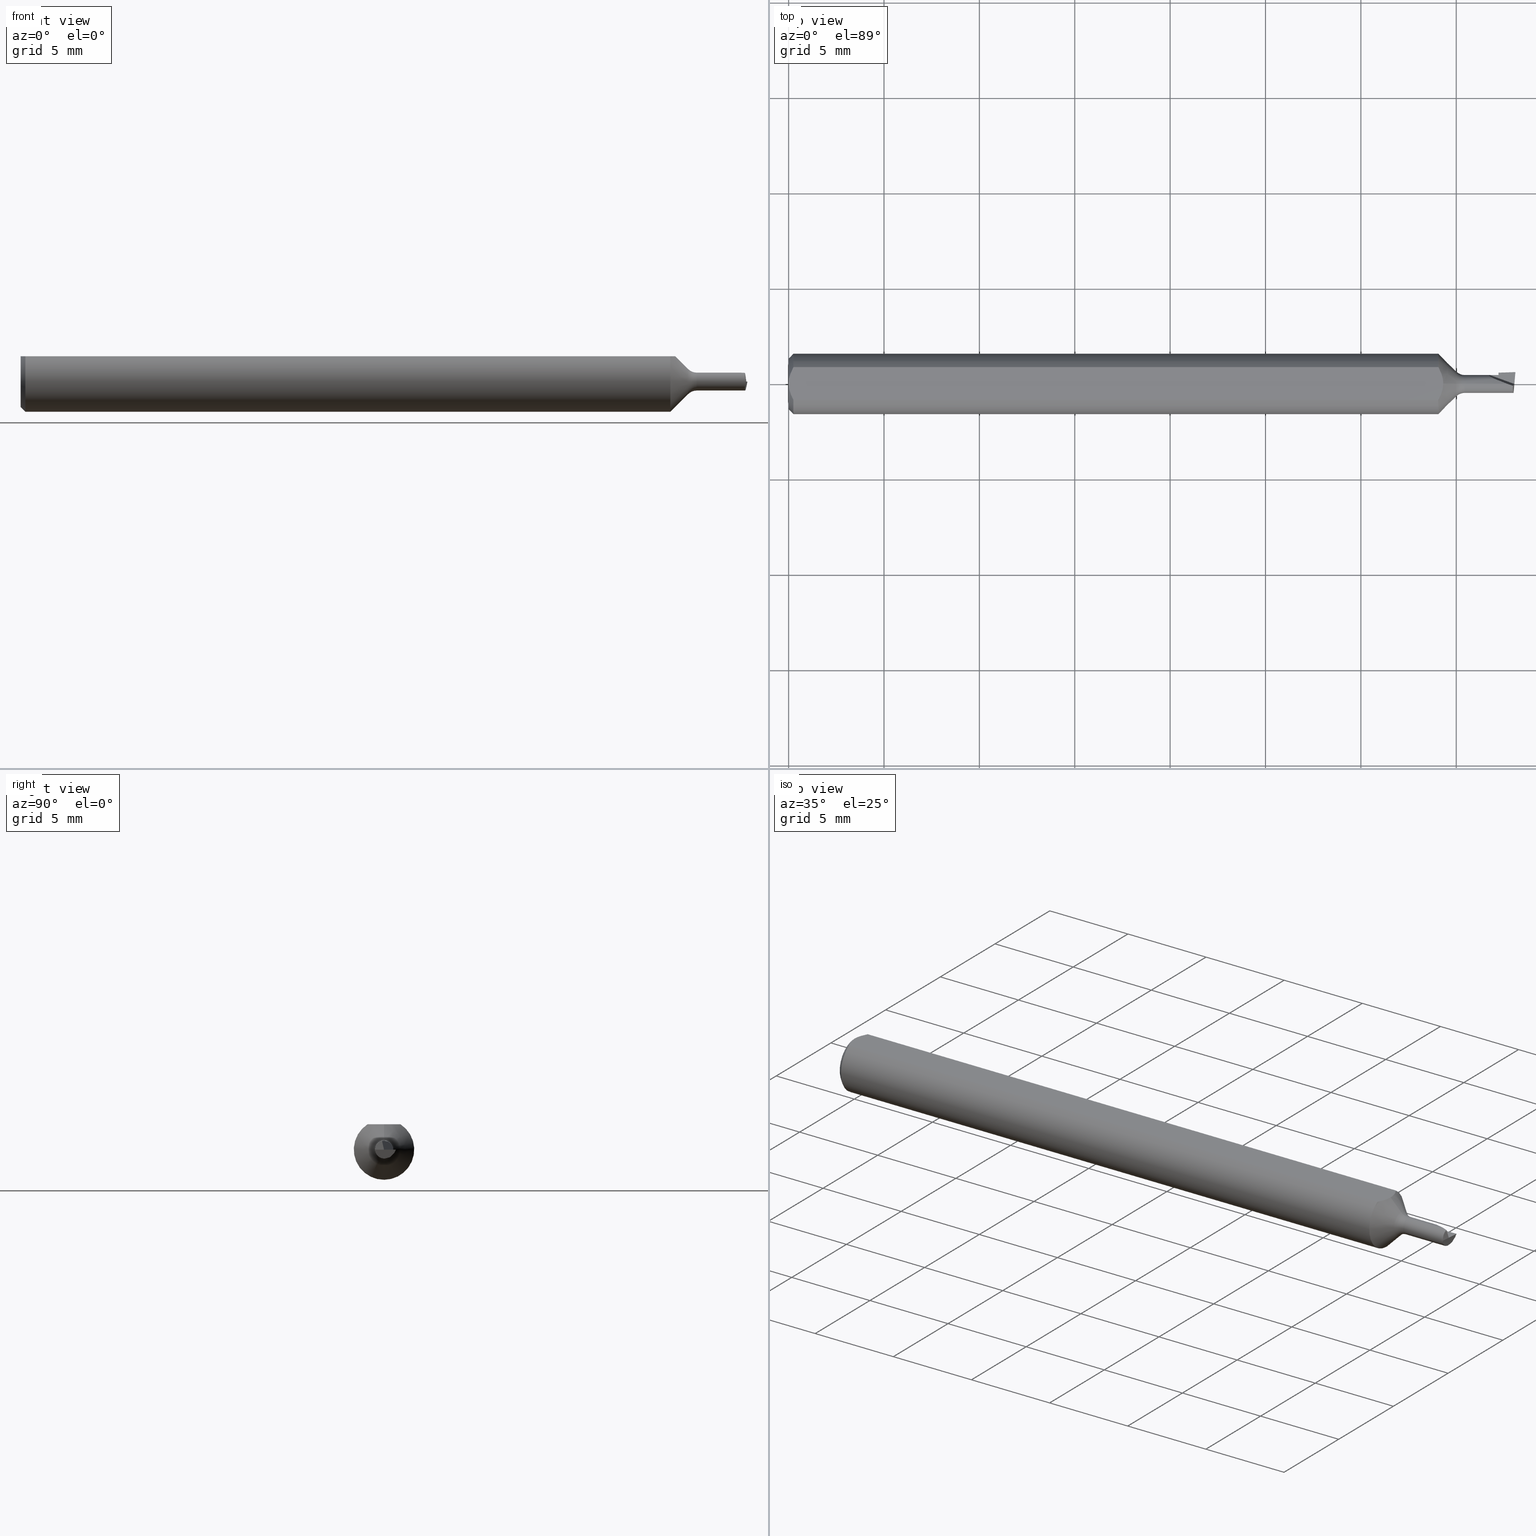
[diagram: canonical four-view strip — front | top / right | iso, engineering-drawing reading convention]
A machine part, canonical four-view strip (front | top / right | iso — engineering-drawing reading convention). The complete STEP part file that produces these views, byte-faithful:
ISO-10303-21;
HEADER;
FILE_DESCRIPTION (( 'STEP AP203' ),
    '1' );
FILE_NAME ('210043-MB045100.STEP',
    '2025-01-30T18:45:05',
    ( '' ),
    ( '' ),
    'SwSTEP 2.0',
    'SolidWorks 2024',
    '' );
FILE_SCHEMA (( 'CONFIG_CONTROL_DESIGN' ));
ENDSEC;

DATA;
#1 = EDGE_LOOP ( 'NONE', ( #149, #515, #184 ) ) ;
#2 = ADVANCED_BREP_SHAPE_REPRESENTATION ( '210043-MB045100', ( #439, #31 ), #454 ) ;
#3 = COORDINATED_UNIVERSAL_TIME_OFFSET ( 8, 0, .BEHIND. ) ;
#4 = CARTESIAN_POINT ( 'NONE',  ( 1.405776579097274936, 0.03350371870230225285, -4.483286445232968331E-18 ) ) ;
#5 = DIRECTION ( 'NONE',  ( -1.000000000000000000, -0.000000000000000000, -0.000000000000000000 ) ) ;
#6 = EDGE_CURVE ( 'NONE', #168, #342, #489, .T. ) ;
#7 = ADVANCED_FACE ( 'NONE', ( #195 ), #203, .T. ) ;
#8 = APPROVAL_STATUS ( 'not_yet_approved' ) ;
#9 = B_SPLINE_CURVE_WITH_KNOTS ( 'NONE', 3,
 ( #430, #140, #326, #274, #586, #85 ),
 .UNSPECIFIED., .F., .F.,
 ( 4, 2, 4 ),
 ( 0.0009229516234079832016, 0.001371626545108144309, 0.001820301466808305416 ),
 .UNSPECIFIED. ) ;
#10 = LINE ( 'NONE', #409, #101 ) ;
#11 = CIRCLE ( 'NONE', #502, 0.01850000000000000949 ) ;
#12 = APPLICATION_CONTEXT ( 'configuration controlled 3d designs of mechanical parts and assemblies' ) ;
#13 = CLOSED_SHELL ( 'NONE', ( #191, #630, #300, #470, #442, #93, #190, #401, #485, #419, #76, #106, #313, #7, #493, #518, #290, #201, #277 ) ) ;
#14 = CARTESIAN_POINT ( 'NONE',  ( 1.465000000000000080, 0.000000000000000000, 0.000000000000000000 ) ) ;
#15 =( BOUNDED_CURVE ( )  B_SPLINE_CURVE ( 3, ( #592, #490, #479, #628 ),
 .UNSPECIFIED., .F., .F. ) 
 B_SPLINE_CURVE_WITH_KNOTS ( ( 4, 4 ),
 ( 5.728084607564618125, 7.298880934359528894 ),
 .UNSPECIFIED. ) 
 CURVE ( )  GEOMETRIC_REPRESENTATION_ITEM ( )  RATIONAL_B_SPLINE_CURVE ( ( 1.000000000000000000, 0.8047378541243617178, 0.8047378541243617178, 1.000000000000000000 ) ) 
 REPRESENTATION_ITEM ( '' )  );
#16 = CARTESIAN_POINT ( 'NONE',  ( 0.01000000000000853331, -0.03386738844395138087, 0.05235000000000001458 ) ) ;
#17 = ORIENTED_EDGE ( 'NONE', *, *, #109, .F. ) ;
#18 = LINE ( 'NONE', #103, #579 ) ;
#19 = DIRECTION ( 'NONE',  ( 0.000000000000000000, 0.000000000000000000, -1.000000000000000000 ) ) ;
#20 = VERTEX_POINT ( 'NONE', #499 ) ;
#21 = CARTESIAN_POINT ( 'NONE',  ( 0.000000000000000000, 0.000000000000000000, 0.05235000000000005621 ) ) ;
#22 = DIRECTION ( 'NONE',  ( 1.000000000000000000, 0.000000000000000000, 0.000000000000000000 ) ) ;
#23 = CARTESIAN_POINT ( 'NONE',  ( 0.000000000000000000, 0.000000000000000000, -0.05235000000000005621 ) ) ;
#24 = DIRECTION ( 'NONE',  ( -1.000000000000000000, -0.000000000000000000, -0.000000000000000000 ) ) ;
#25 = ORIENTED_EDGE ( 'NONE', *, *, #128, .F. ) ;
#26 = EDGE_CURVE ( 'NONE', #545, #393, #606, .T. ) ;
#27 = CARTESIAN_POINT ( 'NONE',  ( 1.494952902551172302, -0.004097954674002785881, 0.01804042038007482376 ) ) ;
#28 = CARTESIAN_POINT ( 'NONE',  ( 1.438508876927481195, 0.01849999999999999908, 0.01083704909609773358 ) ) ;
#29 = VERTEX_POINT ( 'NONE', #105 ) ;
#30 = EDGE_CURVE ( 'NONE', #524, #46, #51, .T. ) ;
#31 = AXIS2_PLACEMENT_3D ( 'NONE', #142, #238, #96 ) ;
#32 = LINE ( 'NONE', #426, #550 ) ;
#33 = DIRECTION ( 'NONE',  ( -0.9864997997699066490, 0.08630754905045853742, 0.1391731009600517543 ) ) ;
#34 = VERTEX_POINT ( 'NONE', #243 ) ;
#35 = APPLICATION_PROTOCOL_DEFINITION ( 'international standard', 'config_control_design', 1994, #12 ) ;
#36 = CARTESIAN_POINT ( 'NONE',  ( 1.418295385203593328, 0.06789885579794455173, -9.160938846980685724E-22 ) ) ;
#37 = ORIENTED_EDGE ( 'NONE', *, *, #365, .F. ) ;
#38 = PRODUCT_DEFINITION_SHAPE ( 'NONE', 'NONE',  #504 ) ;
#39 = DIRECTION ( 'NONE',  ( 0.000000000000000000, 0.000000000000000000, 1.000000000000000000 ) ) ;
#40 = EDGE_CURVE ( 'NONE', #224, #44, #548, .T. ) ;
#41 = ORIENTED_EDGE ( 'NONE', *, *, #30, .F. ) ;
#42 = AXIS2_PLACEMENT_3D ( 'NONE', #260, #456, #460 ) ;
#43 = CARTESIAN_POINT ( 'NONE',  ( 1.395355339059327404, 0.000000000000000000, 0.01850000000000000949 ) ) ;
#44 = VERTEX_POINT ( 'NONE', #354 ) ;
#45 = AXIS2_PLACEMENT_3D ( 'NONE', #531, #424, #622 ) ;
#46 = VERTEX_POINT ( 'NONE', #116 ) ;
#47 = EDGE_CURVE ( 'NONE', #181, #560, #10, .T. ) ;
#48 = CARTESIAN_POINT ( 'NONE',  ( 1.377677669529663751, 0.000000000000000000, 0.000000000000000000 ) ) ;
#49 = ORIENTED_EDGE ( 'NONE', *, *, #568, .F. ) ;
#50 = CYLINDRICAL_SURFACE ( 'NONE', #434, 0.06235000000000000264 ) ;
#51 = LINE ( 'NONE', #444, #343 ) ;
#52 = AXIS2_PLACEMENT_3D ( 'NONE', #36, #330, #223 ) ;
#53 = DIRECTION ( 'NONE',  ( -1.000000000000000000, -0.000000000000000000, -0.000000000000000000 ) ) ;
#54 = EDGE_CURVE ( 'NONE', #541, #241, #305, .T. ) ;
#55 = CARTESIAN_POINT ( 'NONE',  ( 1.351150000000000073, -1.477724559795570125E-21, 0.05235000000000001458 ) ) ;
#56 = EDGE_CURVE ( 'NONE', #160, #46, #264, .T. ) ;
#57 = ORIENTED_EDGE ( 'NONE', *, *, #254, .F. ) ;
#58 = CARTESIAN_POINT ( 'NONE',  ( 0.7984117945685827999, 3.886970232290855934E-33, -3.377760788655366709E-17 ) ) ;
#59 = ORIENTED_EDGE ( 'NONE', *, *, #54, .T. ) ;
#60 = CC_DESIGN_PERSON_AND_ORGANIZATION_ASSIGNMENT ( #395, #546, ( #244 ) ) ;
#61 = DESIGN_CONTEXT ( 'detailed design', #12, 'design' ) ;
#62 = FACE_OUTER_BOUND ( 'NONE', #487, .T. ) ;
#63 = APPROVAL_PERSON_ORGANIZATION ( #230, #338, #182 ) ;
#64 = DATE_AND_TIME ( #402, #121 ) ;
#65 = DIRECTION ( 'NONE',  ( 0.000000000000000000, 0.000000000000000000, 1.000000000000000000 ) ) ;
#66 = DIRECTION ( 'NONE',  ( 0.9864997997699033183, -0.08630754905047478831, 0.1391731009600657154 ) ) ;
#67 = ORIENTED_EDGE ( 'NONE', *, *, #269, .F. ) ;
#68 = CARTESIAN_POINT ( 'NONE',  ( 1.496237987468385322, -0.01849999999999996439, 2.732599657287118718E-16 ) ) ;
#69 = DIRECTION ( 'NONE',  ( -1.000000000000000000, -0.000000000000000000, -0.000000000000000000 ) ) ;
#70 = DIRECTION ( 'NONE',  ( -0.000000000000000000, 0.9659258262890682012, 0.2588190451025212946 ) ) ;
#71 = LINE ( 'NONE', #522, #381 ) ;
#72 = ORIENTED_EDGE ( 'NONE', *, *, #109, .T. ) ;
#73 = CONICAL_SURFACE ( 'NONE', #239, 0.02582233047033637499, 0.7853981633974507215 ) ;
#74 = AXIS2_PLACEMENT_3D ( 'NONE', #446, #197, #370 ) ;
#75 = VECTOR ( 'NONE', #317, 39.37007874015747433 ) ;
#76 = ADVANCED_FACE ( 'NONE', ( #572 ), #129, .F. ) ;
#77 = CYLINDRICAL_SURFACE ( 'NONE', #332, 0.01850000000000000255 ) ;
#78 = EDGE_CURVE ( 'NONE', #29, #611, #458, .T. ) ;
#79 = VERTEX_POINT ( 'NONE', #170 ) ;
#80 = CARTESIAN_POINT ( 'NONE',  ( 0.004679365186825881588, -0.02325953974091120660, 0.05235000000000001458 ) ) ;
#81 = CARTESIAN_POINT ( 'NONE',  ( 1.346488788636946765, 0.02320328458619742157, 0.05235000000000002152 ) ) ;
#82 = EDGE_LOOP ( 'NONE', ( #507, #213, #17, #596, #372 ) ) ;
#83 = EDGE_CURVE ( 'NONE', #224, #545, #436, .T. ) ;
#84 = CARTESIAN_POINT ( 'NONE',  ( 1.377677669529663751, 0.000000000000000000, 0.02582233047033637152 ) ) ;
#85 = CARTESIAN_POINT ( 'NONE',  ( 0.000000000000000000, 0.000000000000000000, 0.05235000000000005621 ) ) ;
#86 = ORIENTED_EDGE ( 'NONE', *, *, #554, .T. ) ;
#87 = CC_DESIGN_APPROVAL ( #338, ( #504 ) ) ;
#88 = AXIS2_PLACEMENT_3D ( 'NONE', #566, #131, #266 ) ;
#89 = CARTESIAN_POINT ( 'NONE',  ( 1.341150000000000286, 0.03386738844375220686, 0.05235000000000000070 ) ) ;
#90 = ORIENTED_EDGE ( 'NONE', *, *, #605, .T. ) ;
#91 =( BOUNDED_CURVE ( )  B_SPLINE_CURVE ( 3, ( #348, #107, #292, #498 ),
 .UNSPECIFIED., .F., .F. ) 
 B_SPLINE_CURVE_WITH_KNOTS ( ( 4, 4 ),
 ( 5.466285219765468995, 5.728084607564618125 ),
 .UNSPECIFIED. ) 
 CURVE ( )  GEOMETRIC_REPRESENTATION_ITEM ( )  RATIONAL_B_SPLINE_CURVE ( ( 1.000000000000000000, 0.9942965742492069214, 0.9942965742492069214, 1.000000000000000000 ) ) 
 REPRESENTATION_ITEM ( '' )  );
#92 = COORDINATED_UNIVERSAL_TIME_OFFSET ( 8, 0, .BEHIND. ) ;
#93 = ADVANCED_FACE ( 'NONE', ( #62 ), #77, .T. ) ;
#94 = CARTESIAN_POINT ( 'NONE',  ( 1.483333815684383605, 0.000000000000000000, 0.01850000000000000255 ) ) ;
#95 = VERTEX_POINT ( 'NONE', #569 ) ;
#96 = DIRECTION ( 'NONE',  ( 1.000000000000000000, 0.000000000000000000, 0.000000000000000000 ) ) ;
#97 = CARTESIAN_POINT ( 'NONE',  ( 1.351150000000000073, -1.477724559795570125E-21, 0.05235000000000001458 ) ) ;
#98 = ORIENTED_EDGE ( 'NONE', *, *, #169, .F. ) ;
#99 = CC_DESIGN_SECURITY_CLASSIFICATION ( #640, ( #175 ) ) ;
#100 = LINE ( 'NONE', #58, #352 ) ;
#101 = VECTOR ( 'NONE', #356, 39.37007874015748854 ) ;
#102 = ORIENTED_EDGE ( 'NONE', *, *, #465, .T. ) ;
#103 = CARTESIAN_POINT ( 'NONE',  ( 1.460138284237282980, 0.01984185495899845955, -0.006999999999999996676 ) ) ;
#104 = DIRECTION ( 'NONE',  ( 0.000000000000000000, -0.4228298219691071225, -0.9062091048171900809 ) ) ;
#105 = CARTESIAN_POINT ( 'NONE',  ( 1.446998957439701305, 0.01849999999999990888, -4.483286445232968331E-18 ) ) ;
#106 = ADVANCED_FACE ( 'NONE', ( #418 ), #602, .T. ) ;
#107 = CARTESIAN_POINT ( 'NONE',  ( 1.495558491035186899, 0.003224263161052950705, -0.01828867062739698499 ) ) ;
#108 = CARTESIAN_POINT ( 'NONE',  ( 1.395355339059327404, 0.000000000000000000, 0.000000000000000000 ) ) ;
#109 = EDGE_CURVE ( 'NONE', #327, #44, #415, .T. ) ;
#110 = APPROVAL_ROLE ( '' ) ;
#111 = DIRECTION ( 'NONE',  ( -1.000000000000000000, -0.000000000000000000, -0.000000000000000000 ) ) ;
#112 = AXIS2_PLACEMENT_3D ( 'NONE', #221, #22, #610 ) ;
#113 = ORIENTED_EDGE ( 'NONE', *, *, #488, .T. ) ;
#114 = CIRCLE ( 'NONE', #486, 0.02499999999999999445 ) ;
#115 = CARTESIAN_POINT ( 'NONE',  ( 1.494952902551172302, -0.004097954674002785881, 0.01804042038007482376 ) ) ;
#116 = CARTESIAN_POINT ( 'NONE',  ( 0.01000000000000001582, 0.000000000000000000, -0.06235000000000000264 ) ) ;
#117 = DATE_AND_TIME ( #233, #225 ) ;
#118 = FACE_OUTER_BOUND ( 'NONE', #376, .T. ) ;
#119 = DIRECTION ( 'NONE',  ( 0.7071067811865499042, 0.000000000000000000, -0.7071067811865450192 ) ) ;
#120 = DIRECTION ( 'NONE',  ( 1.000000000000000000, 0.000000000000000000, 0.000000000000000000 ) ) ;
#121 = LOCAL_TIME ( 10, 45, 5.000000000000000000, #3 ) ;
#122 = CARTESIAN_POINT ( 'NONE',  ( 0.000000000000000000, 2.265596578422603809E-18, -0.01850000000000000255 ) ) ;
#123 = FACE_OUTER_BOUND ( 'NONE', #1, .T. ) ;
#124 = ORIENTED_EDGE ( 'NONE', *, *, #236, .T. ) ;
#125 = CARTESIAN_POINT ( 'NONE',  ( 1.494967355536287235, -0.01849999999999989847, 0.009006612182587525606 ) ) ;
#126 = CARTESIAN_POINT ( 'NONE',  ( 0.000000000000000000, 0.000000000000000000, 0.000000000000000000 ) ) ;
#127 = CARTESIAN_POINT ( 'NONE',  ( 1.495754431199804557, 0.004788152334396647905, -0.01786962778634774984 ) ) ;
#128 = EDGE_CURVE ( 'NONE', #425, #541, #362, .T. ) ;
#129 = PLANE ( 'NONE',  #581 ) ;
#130 = AXIS2_PLACEMENT_3D ( 'NONE', #571, #421, #562 ) ;
#131 = DIRECTION ( 'NONE',  ( -1.000000000000000000, -0.000000000000000000, -0.000000000000000000 ) ) ;
#132 = ORIENTED_EDGE ( 'NONE', *, *, #420, .F. ) ;
#133 = LINE ( 'NONE', #472, #185 ) ;
#134 = ORIENTED_EDGE ( 'NONE', *, *, #390, .F. ) ;
#135 = DIRECTION ( 'NONE',  ( -0.000000000000000000, 1.000000000000000000, 1.150753554054429375E-16 ) ) ;
#136 = ORIENTED_EDGE ( 'NONE', *, *, #47, .F. ) ;
#137 = APPROVAL ( #153, 'UNSPECIFIED' ) ;
#138 = VECTOR ( 'NONE', #135, 39.37007874015748143 ) ;
#139 = AXIS2_PLACEMENT_3D ( 'NONE', #278, #480, #39 ) ;
#140 = CARTESIAN_POINT ( 'NONE',  ( 0.007185421074056361733, 0.02868573718286557273, 0.05235000000000002152 ) ) ;
#141 = ORIENTED_EDGE ( 'NONE', *, *, #6, .F. ) ;
#142 = CARTESIAN_POINT ( 'NONE',  ( 0.000000000000000000, 0.000000000000000000, 0.000000000000000000 ) ) ;
#143 = EDGE_LOOP ( 'NONE', ( #206, #124, #638, #251, #229, #310 ) ) ;
#144 = EDGE_CURVE ( 'NONE', #425, #34, #71, .T. ) ;
#145 = CARTESIAN_POINT ( 'NONE',  ( 0.000000000000000000, 0.000000000000000000, 0.000000000000000000 ) ) ;
#146 = ORIENTED_EDGE ( 'NONE', *, *, #605, .F. ) ;
#147 = ORGANIZATION ( 'UNSPECIFIED', 'UNSPECIFIED', '' ) ;
#148 = EDGE_CURVE ( 'NONE', #224, #168, #114, .T. ) ;
#149 = ORIENTED_EDGE ( 'NONE', *, *, #540, .T. ) ;
#150 =( NAMED_UNIT ( * ) SI_UNIT ( $, .STERADIAN. ) SOLID_ANGLE_UNIT ( ) );
#151 = CARTESIAN_POINT ( 'NONE',  ( 1.500000000000000222, 0.02450000000000000094, -1.067128122525102820E-18 ) ) ;
#152 = ORIENTED_EDGE ( 'NONE', *, *, #392, .T. ) ;
#153 = APPROVAL_STATUS ( 'not_yet_approved' ) ;
#154 = CARTESIAN_POINT ( 'NONE',  ( 1.350078879331740422, -0.01191647624495715749, 0.05235000000000002152 ) ) ;
#155 = ORIENTED_EDGE ( 'NONE', *, *, #559, .F. ) ;
#156 = DATE_AND_TIME ( #353, #273 ) ;
#157 = VECTOR ( 'NONE', #70, 39.37007874015747433 ) ;
#158 = DIRECTION ( 'NONE',  ( -0.7071067811865457964, 8.659560562354953812E-17, -0.7071067811865492381 ) ) ;
#159 = AXIS2_PLACEMENT_3D ( 'NONE', #335, #33, #477 ) ;
#160 = VERTEX_POINT ( 'NONE', #16 ) ;
#161 = FACE_OUTER_BOUND ( 'NONE', #573, .T. ) ;
#162 = EDGE_CURVE ( 'NONE', #46, #79, #297, .T. ) ;
#163 = CARTESIAN_POINT ( 'NONE',  ( 1.465000000000000080, 0.02001162981448263017, -0.006999999999999996676 ) ) ;
#164 = B_SPLINE_CURVE_WITH_KNOTS ( 'NONE', 3,
 ( #21, #521, #220, #80, #322, #525 ),
 .UNSPECIFIED., .F., .F.,
 ( 4, 2, 4 ),
 ( 0.001820301466808305416, 0.002269751589840578697, 0.002719201712872851978 ),
 .UNSPECIFIED. ) ;
#165 = DIRECTION ( 'NONE',  ( 0.000000000000000000, 0.000000000000000000, 1.000000000000000000 ) ) ;
#166 = CARTESIAN_POINT ( 'NONE',  ( 1.377677669529663751, 3.162323435702260084E-18, -0.02582233047033637152 ) ) ;
#167 = CARTESIAN_POINT ( 'NONE',  ( 1.491155917282976695, 0.03518992960932577213, 0.06931876481191029393 ) ) ;
#168 = VERTEX_POINT ( 'NONE', #413 ) ;
#169 = EDGE_CURVE ( 'NONE', #611, #351, #248, .T. ) ;
#170 = CARTESIAN_POINT ( 'NONE',  ( 0.01000000000000001929, 0.03386738844375217911, 0.05235000000000001458 ) ) ;
#171 = ORIENTED_EDGE ( 'NONE', *, *, #83, .F. ) ;
#172 = DIRECTION ( 'NONE',  ( 0.02467767077832642292, -0.7066760308408334135, 0.7071067811865490160 ) ) ;
#173 = DIRECTION ( 'NONE',  ( 0.000000000000000000, 0.000000000000000000, -1.000000000000000000 ) ) ;
#174 = EDGE_LOOP ( 'NONE', ( #41, #57, #520, #441 ) ) ;
#175 = PRODUCT_DEFINITION_FORMATION_WITH_SPECIFIED_SOURCE ( 'ANY', '', #244, .NOT_KNOWN. ) ;
#176 = CARTESIAN_POINT ( 'NONE',  ( 1.494465960141844851, -0.01288082332125566748, 0.01604535613734162092 ) ) ;
#177 = DIRECTION ( 'NONE',  ( 0.000000000000000000, 0.000000000000000000, -1.000000000000000000 ) ) ;
#178 = ORIENTED_EDGE ( 'NONE', *, *, #40, .F. ) ;
#179 = LINE ( 'NONE', #618, #157 ) ;
#180 = FACE_OUTER_BOUND ( 'NONE', #143, .T. ) ;
#181 = VERTEX_POINT ( 'NONE', #163 ) ;
#182 = APPROVAL_ROLE ( '' ) ;
#183 = LINE ( 'NONE', #188, #215 ) ;
#184 = ORIENTED_EDGE ( 'NONE', *, *, #465, .F. ) ;
#185 = VECTOR ( 'NONE', #280, 39.37007874015748854 ) ;
#186 = CARTESIAN_POINT ( 'NONE',  ( 1.496237987468385322, -0.01849999999999996439, 2.732599657287118718E-16 ) ) ;
#187 = VECTOR ( 'NONE', #311, 39.37007874015748143 ) ;
#188 = CARTESIAN_POINT ( 'NONE',  ( 0.000000000000000000, 0.000000000000000000, 0.01850000000000000255 ) ) ;
#189 = ORIENTED_EDGE ( 'NONE', *, *, #83, .T. ) ;
#190 = ADVANCED_FACE ( 'NONE', ( #416 ), #410, .F. ) ;
#191 = ADVANCED_FACE ( 'NONE', ( #422 ), #383, .T. ) ;
#192 = CARTESIAN_POINT ( 'NONE',  ( 1.446998957439701305, 0.01849999999999990888, -4.483286445232968331E-18 ) ) ;
#193 = ORIENTED_EDGE ( 'NONE', *, *, #601, .F. ) ;
#194 =( BOUNDED_CURVE ( )  B_SPLINE_CURVE ( 3, ( #94, #632, #28, #192 ),
 .UNSPECIFIED., .F., .F. ) 
 B_SPLINE_CURVE_WITH_KNOTS ( ( 4, 4 ),
 ( 4.990162771046304790, 6.560959097841199572 ),
 .UNSPECIFIED. ) 
 CURVE ( )  GEOMETRIC_REPRESENTATION_ITEM ( )  RATIONAL_B_SPLINE_CURVE ( ( 1.000000000000000000, 0.8047378541243654926, 0.8047378541243654926, 1.000000000000000000 ) ) 
 REPRESENTATION_ITEM ( '' )  );
#195 = FACE_OUTER_BOUND ( 'NONE', #286, .T. ) ;
#196 = AXIS2_PLACEMENT_3D ( 'NONE', #48, #379, #544 ) ;
#197 = DIRECTION ( 'NONE',  ( 1.000000000000000000, 0.000000000000000000, 0.000000000000000000 ) ) ;
#198 = APPROVAL_DATE_TIME ( #156, #211 ) ;
#199 = DIRECTION ( 'NONE',  ( -0.3303660895493409355, -0.9076733711903737234, -0.2588190451025175753 ) ) ;
#200 = ORIENTED_EDGE ( 'NONE', *, *, #254, .T. ) ;
#201 = ADVANCED_FACE ( 'NONE', ( #123 ), #309, .T. ) ;
#202 = FACE_OUTER_BOUND ( 'NONE', #627, .T. ) ;
#203 = PLANE ( 'NONE',  #320 ) ;
#204 = SECURITY_CLASSIFICATION_LEVEL ( 'unclassified' ) ;
#205 = AXIS2_PLACEMENT_3D ( 'NONE', #231, #375, #427 ) ;
#206 = ORIENTED_EDGE ( 'NONE', *, *, #208, .F. ) ;
#207 = VECTOR ( 'NONE', #345, 39.37007874015748143 ) ;
#208 = EDGE_CURVE ( 'NONE', #79, #327, #258, .T. ) ;
#209 = CARTESIAN_POINT ( 'NONE',  ( 0.000000000000000000, 0.000000000000000000, 0.000000000000000000 ) ) ;
#210 = APPROVAL_DATE_TIME ( #64, #137 ) ;
#211 = APPROVAL ( #8, 'UNSPECIFIED' ) ;
#212 = CARTESIAN_POINT ( 'NONE',  ( 0.000000000000000000, 0.03386738844375220686, 0.05235000000000000070 ) ) ;
#213 = ORIENTED_EDGE ( 'NONE', *, *, #40, .T. ) ;
#214 = DIRECTION ( 'NONE',  ( 0.000000000000000000, 0.000000000000000000, 1.000000000000000000 ) ) ;
#215 = VECTOR ( 'NONE', #339, 39.37007874015748143 ) ;
#216 = CIRCLE ( 'NONE', #464, 0.05235000000000005621 ) ;
#217 = CARTESIAN_POINT ( 'NONE',  ( 1.460138284237282980, 0.01984185495899845955, -0.006999999999999996676 ) ) ;
#218 = DIRECTION ( 'NONE',  ( 0.1396943646708924958, 0.000000000000000000, -0.9901946699913082295 ) ) ;
#219 = CC_DESIGN_PERSON_AND_ORGANIZATION_ASSIGNMENT ( #255, #407, ( #175 ) ) ;
#220 = CARTESIAN_POINT ( 'NONE',  ( 0.001055043921644817405, -0.01186408073217191071, 0.05235000000000002152 ) ) ;
#221 = CARTESIAN_POINT ( 'NONE',  ( 1.465000000000000080, 0.01849999999999999908, 0.000000000000000000 ) ) ;
#222 = ORIENTED_EDGE ( 'NONE', *, *, #392, .F. ) ;
#223 = DIRECTION ( 'NONE',  ( 0.000000000000000000, 1.000000000000000000, 1.150753554054429375E-16 ) ) ;
#224 = VERTEX_POINT ( 'NONE', #166 ) ;
#225 = LOCAL_TIME ( 10, 45, 5.000000000000000000, #92 ) ;
#226 = DIRECTION ( 'NONE',  ( -1.000000000000000000, -0.000000000000000000, -0.000000000000000000 ) ) ;
#227 = EDGE_CURVE ( 'NONE', #378, #160, #517, .T. ) ;
#228 = CARTESIAN_POINT ( 'NONE',  ( 1.500000000000000222, 0.06235000000000000264, 0.05235000000000001458 ) ) ;
#229 = ORIENTED_EDGE ( 'NONE', *, *, #488, .F. ) ;
#230 = PERSON_AND_ORGANIZATION ( #329, #147 ) ;
#231 = CARTESIAN_POINT ( 'NONE',  ( 1.395355339059327404, 0.000000000000000000, 0.000000000000000000 ) ) ;
#232 = ORIENTED_EDGE ( 'NONE', *, *, #420, .T. ) ;
#233 = CALENDAR_DATE ( 2025, 30, 1 ) ;
#234 = FACE_OUTER_BOUND ( 'NONE', #252, .T. ) ;
#235 = ORIENTED_EDGE ( 'NONE', *, *, #128, .T. ) ;
#236 = EDGE_CURVE ( 'NONE', #79, #95, #9, .T. ) ;
#237 = AXIS2_PLACEMENT_3D ( 'NONE', #217, #172, #528 ) ;
#238 = DIRECTION ( 'NONE',  ( 0.000000000000000000, 0.000000000000000000, 1.000000000000000000 ) ) ;
#239 = AXIS2_PLACEMENT_3D ( 'NONE', #513, #53, #65 ) ;
#240 = CARTESIAN_POINT ( 'NONE',  ( 1.465000000000000080, 0.004788152334396648772, -0.01786962778634774984 ) ) ;
#241 = VERTEX_POINT ( 'NONE', #271 ) ;
#242 = CARTESIAN_POINT ( 'NONE',  ( 1.496684692676496731, 0.01221299988732022293, -0.01588014588061767429 ) ) ;
#243 = CARTESIAN_POINT ( 'NONE',  ( 1.497855625440970062, -1.031336641983672081E-05, 2.387862265685893356E-16 ) ) ;
#244 = PRODUCT ( '210043-MB045100', '210043-MB045100', '', ( #432 ) ) ;
#245 = DIRECTION ( 'NONE',  ( -0.1593925713349118589, -0.7010550863643484343, -0.6950653020299035756 ) ) ;
#246 = DIRECTION ( 'NONE',  ( -1.000000000000000000, -0.000000000000000000, -0.000000000000000000 ) ) ;
#247 = VECTOR ( 'NONE', #514, 39.37007874015748143 ) ;
#248 = CIRCLE ( 'NONE', #600, 0.01849999999999999908 ) ;
#249 = DIRECTION ( 'NONE',  ( 0.000000000000000000, 0.000000000000000000, 1.000000000000000000 ) ) ;
#250 = CARTESIAN_POINT ( 'NONE',  ( 1.344001488371463049, -0.02861778674340261300, 0.05235000000000002152 ) ) ;
#251 = ORIENTED_EDGE ( 'NONE', *, *, #227, .F. ) ;
#252 = EDGE_LOOP ( 'NONE', ( #171, #530, #279, #414 ) ) ;
#253 = EDGE_CURVE ( 'NONE', #358, #29, #194, .T. ) ;
#254 = EDGE_CURVE ( 'NONE', #95, #524, #642, .T. ) ;
#255 = PERSON_AND_ORGANIZATION ( #329, #147 ) ;
#256 = DIRECTION ( 'NONE',  ( 0.000000000000000000, -1.224646799147353207E-16, 1.000000000000000000 ) ) ;
#257 = CARTESIAN_POINT ( 'NONE',  ( 1.351150000000000073, -1.477724559795570125E-21, 0.05235000000000001458 ) ) ;
#258 = LINE ( 'NONE', #212, #448 ) ;
#259 = DIRECTION ( 'NONE',  ( -0.9987822236179720869, -0.04765519936432637688, -0.01276917218481542736 ) ) ;
#260 = CARTESIAN_POINT ( 'NONE',  ( 0.01000000000000001582, 0.000000000000000000, 0.000000000000000000 ) ) ;
#261 = FACE_OUTER_BOUND ( 'NONE', #282, .T. ) ;
#262 = DIRECTION ( 'NONE',  ( 0.000000000000000000, 0.000000000000000000, -1.000000000000000000 ) ) ;
#263 = AXIS2_PLACEMENT_3D ( 'NONE', #4, #199, #304 ) ;
#264 = CIRCLE ( 'NONE', #74, 0.06235000000000000264 ) ;
#265 = VECTOR ( 'NONE', #386, 39.37007874015748143 ) ;
#266 = DIRECTION ( 'NONE',  ( 0.000000000000000000, 0.000000000000000000, 1.000000000000000000 ) ) ;
#267 = ORIENTED_EDGE ( 'NONE', *, *, #538, .F. ) ;
#268 = FACE_OUTER_BOUND ( 'NONE', #492, .T. ) ;
#269 = EDGE_CURVE ( 'NONE', #358, #342, #183, .T. ) ;
#270 = DIRECTION ( 'NONE',  ( 0.000000000000000000, -0.4228298219691071225, -0.9062091048171900809 ) ) ;
#271 = CARTESIAN_POINT ( 'NONE',  ( 1.496688055231696124, 0.01223983799721654366, -0.01587295463074458318 ) ) ;
#272 = ORIENTED_EDGE ( 'NONE', *, *, #325, .F. ) ;
#273 = LOCAL_TIME ( 10, 45, 5.000000000000000000, #497 ) ;
#274 = CARTESIAN_POINT ( 'NONE',  ( 0.001063697276021621741, 0.01189177144351693215, 0.05235000000000001458 ) ) ;
#275 = ORIENTED_EDGE ( 'NONE', *, *, #78, .T. ) ;
#276 =( CONVERSION_BASED_UNIT ( 'INCH', #337 ) LENGTH_UNIT ( ) NAMED_UNIT ( #482 ) );
#277 = ADVANCED_FACE ( 'NONE', ( #180 ), #474, .F. ) ;
#278 = CARTESIAN_POINT ( 'NONE',  ( 1.341150000000000286, 0.000000000000000000, 0.000000000000000000 ) ) ;
#279 = ORIENTED_EDGE ( 'NONE', *, *, #6, .T. ) ;
#280 = DIRECTION ( 'NONE',  ( 0.9396926207859126468, -0.3420201433256568335, -0.000000000000000000 ) ) ;
#281 = EDGE_CURVE ( 'NONE', #327, #393, #607, .T. ) ;
#282 = EDGE_LOOP ( 'NONE', ( #411, #59, #385, #136 ) ) ;
#283 = AXIS2_PLACEMENT_3D ( 'NONE', #308, #412, #165 ) ;
#284 = PERSON_AND_ORGANIZATION_ROLE ( 'creator' ) ;
#285 = VECTOR ( 'NONE', #158, 39.37007874015748143 ) ;
#286 = EDGE_LOOP ( 'NONE', ( #469, #90, #398, #567 ) ) ;
#287 = DIRECTION ( 'NONE',  ( 0.9993908270190960952, 0.03489949670248750080, -0.000000000000000000 ) ) ;
#288 = B_SPLINE_CURVE_WITH_KNOTS ( 'NONE', 3,
 ( #257, #457, #154, #503, #250, #451 ),
 .UNSPECIFIED., .F., .F.,
 ( 4, 2, 4 ),
 ( 0.002916663230282859516, 0.003365861382119317465, 0.003815059533955774979 ),
 .UNSPECIFIED. ) ;
#289 = CARTESIAN_POINT ( 'NONE',  ( 1.497591963102740786, 0.01621548884024824957, -0.01193127157655284563 ) ) ;
#290 = ADVANCED_FACE ( 'NONE', ( #484 ), #580, .F. ) ;
#291 = CYLINDRICAL_SURFACE ( 'NONE', #283, 0.01850000000000000255 ) ;
#292 = CARTESIAN_POINT ( 'NONE',  ( 1.495388239854692269, 0.001619057209963974077, -0.01849999999999999908 ) ) ;
#293 = CARTESIAN_POINT ( 'NONE',  ( 1.560200597524541877, 0.004788152334396648772, -0.01786962778634774984 ) ) ;
#294 = PERSON_AND_ORGANIZATION ( #329, #147 ) ;
#295 = DIRECTION ( 'NONE',  ( 0.9993908270190957621, 0.03489949670250171165, 4.587456144808678678E-17 ) ) ;
#296 = AXIS2_PLACEMENT_3D ( 'NONE', #108, #5, #249 ) ;
#297 = CIRCLE ( 'NONE', #42, 0.06235000000000000264 ) ;
#298 = CARTESIAN_POINT ( 'NONE',  ( 1.377677669529663751, 3.162323435702260854E-18, -0.02582233047033637499 ) ) ;
#299 = PERSON_AND_ORGANIZATION ( #329, #147 ) ;
#300 = ADVANCED_FACE ( 'NONE', ( #234 ), #549, .F. ) ;
#301 = CARTESIAN_POINT ( 'NONE',  ( 1.491015288325890253, -0.002751962849508973741, 0.01834616788330074855 ) ) ;
#302 = EDGE_LOOP ( 'NONE', ( #72, #478, #633, #543, #641, #576 ) ) ;
#303 = DATE_TIME_ROLE ( 'classification_date' ) ;
#304 = DIRECTION ( 'NONE',  ( 0.9396926207859126468, -0.3420201433256567780, 0.000000000000000000 ) ) ;
#305 = LINE ( 'NONE', #289, #447 ) ;
#306 = EDGE_CURVE ( 'NONE', #611, #577, #536, .T. ) ;
#307 = CALENDAR_DATE ( 2025, 30, 1 ) ;
#308 = CARTESIAN_POINT ( 'NONE',  ( 0.000000000000000000, 0.000000000000000000, 0.000000000000000000 ) ) ;
#309 = PLANE ( 'NONE',  #462 ) ;
#310 = ORIENTED_EDGE ( 'NONE', *, *, #281, .F. ) ;
#311 = DIRECTION ( 'NONE',  ( -1.000000000000000000, -0.000000000000000000, -0.000000000000000000 ) ) ;
#312 = CARTESIAN_POINT ( 'NONE',  ( 2.815371162439451627E-33, 0.01850000000000000255, -6.508939666095427711E-17 ) ) ;
#313 = ADVANCED_FACE ( 'NONE', ( #268 ), #574, .F. ) ;
#314 = DIRECTION ( 'NONE',  ( -0.08715574274766034468, -0.9961946980917453232, -1.182878904194726503E-16 ) ) ;
#315 = EDGE_LOOP ( 'NONE', ( #382, #102, #193, #132, #423, #533, #25 ) ) ;
#316 = PLANE ( 'NONE',  #237 ) ;
#317 = DIRECTION ( 'NONE',  ( -0.1627401076574647720, -0.4218543546513220388, -0.8919386530593645945 ) ) ;
#318 = AXIS2_PLACEMENT_3D ( 'NONE', #228, #377, #626 ) ;
#319 = ORIENTED_EDGE ( 'NONE', *, *, #601, .T. ) ;
#320 = AXIS2_PLACEMENT_3D ( 'NONE', #293, #557, #599 ) ;
#321 = AXIS2_PLACEMENT_3D ( 'NONE', #616, #120, #173 ) ;
#322 = CARTESIAN_POINT ( 'NONE',  ( 0.007163450771416337952, -0.02864528976632486554, 0.05235000000000002152 ) ) ;
#323 = EDGE_CURVE ( 'NONE', #545, #224, #570, .T. ) ;
#324 = CARTESIAN_POINT ( 'NONE',  ( 1.465000000000000080, 0.01849999999999999908, -3.729330705459841584E-18 ) ) ;
#325 = EDGE_CURVE ( 'NONE', #29, #34, #133, .T. ) ;
#326 = CARTESIAN_POINT ( 'NONE',  ( 0.004671770759546966557, 0.02323517832780101766, 0.05235000000000002152 ) ) ;
#327 = VERTEX_POINT ( 'NONE', #89 ) ;
#328 = CC_DESIGN_DATE_AND_TIME_ASSIGNMENT ( #117, #359, ( #504 ) ) ;
#329 = PERSON ( 'UNSPECIFIED', 'UNSPECIFIED', 'UNSPECIFIED', ('UNSPECIFIED'), ('UNSPECIFIED'), ('UNSPECIFIED') ) ;
#330 = DIRECTION ( 'NONE',  ( 4.188400406518391045E-17, 1.150753554054429375E-16, -1.000000000000000000 ) ) ;
#331 = ORIENTED_EDGE ( 'NONE', *, *, #323, .F. ) ;
#332 = AXIS2_PLACEMENT_3D ( 'NONE', #126, #563, #463 ) ;
#333 = VECTOR ( 'NONE', #104, 39.37007874015748854 ) ;
#334 = DATE_AND_TIME ( #438, #511 ) ;
#335 = CARTESIAN_POINT ( 'NONE',  ( 1.495443673491787084, 0.02831007852008726039, -0.03465938240595495962 ) ) ;
#336 = VERTEX_POINT ( 'NONE', #440 ) ;
#337 = LENGTH_MEASURE_WITH_UNIT ( LENGTH_MEASURE( 0.02539999999999999897 ), #347 );
#338 = APPROVAL ( #429, 'UNSPECIFIED' ) ;
#339 = DIRECTION ( 'NONE',  ( -1.000000000000000000, -0.000000000000000000, -0.000000000000000000 ) ) ;
#340 = ORIENTED_EDGE ( 'NONE', *, *, #78, .F. ) ;
#341 =( NAMED_UNIT ( * ) PLANE_ANGLE_UNIT ( ) SI_UNIT ( $, .RADIAN. ) );
#342 = VERTEX_POINT ( 'NONE', #43 ) ;
#343 = VECTOR ( 'NONE', #119, 39.37007874015748854 ) ;
#344 = CARTESIAN_POINT ( 'NONE',  ( 1.465000000000000080, 0.02242357863109861044, -0.001830709982111567661 ) ) ;
#345 = DIRECTION ( 'NONE',  ( -0.7071067811865457964, 0.000000000000000000, 0.7071067811865492381 ) ) ;
#346 = EDGE_CURVE ( 'NONE', #44, #378, #417, .T. ) ;
#347 =( LENGTH_UNIT ( ) NAMED_UNIT ( * ) SI_UNIT ( $, .METRE. ) );
#348 = CARTESIAN_POINT ( 'NONE',  ( 1.495754431199804557, 0.004788152334396647905, -0.01786962778634774984 ) ) ;
#349 = ORIENTED_EDGE ( 'NONE', *, *, #56, .F. ) ;
#350 = FACE_OUTER_BOUND ( 'NONE', #368, .T. ) ;
#351 = VERTEX_POINT ( 'NONE', #240 ) ;
#352 = VECTOR ( 'NONE', #295, 39.37007874015748854 ) ;
#353 = CALENDAR_DATE ( 2025, 30, 1 ) ;
#354 = CARTESIAN_POINT ( 'NONE',  ( 1.341150000000000286, 7.635672792683746671E-18, -0.06235000000000000264 ) ) ;
#355 = PRODUCT_RELATED_PRODUCT_CATEGORY ( 'detail', '', ( #244 ) ) ;
#356 = DIRECTION ( 'NONE',  ( 0.000000000000000000, -0.7073221891495888869, -0.7068913075831623205 ) ) ;
#357 = CARTESIAN_POINT ( 'NONE',  ( 0.000000000000000000, 0.000000000000000000, 0.000000000000000000 ) ) ;
#358 = VERTEX_POINT ( 'NONE', #636 ) ;
#359 = DATE_TIME_ROLE ( 'creation_date' ) ;
#360 = CARTESIAN_POINT ( 'NONE',  ( 1.500296196177055563, 0.02788553779562383261, 3.414809992080329023E-16 ) ) ;
#361 = CC_DESIGN_APPROVAL ( #211, ( #640 ) ) ;
#362 = LINE ( 'NONE', #509, #75 ) ;
#363 = VECTOR ( 'NONE', #609, 39.37007874015748854 ) ;
#364 = ORIENTED_EDGE ( 'NONE', *, *, #510, .F. ) ;
#365 = EDGE_CURVE ( 'NONE', #342, #168, #11, .T. ) ;
#366 = CARTESIAN_POINT ( 'NONE',  ( 0.000000000000000000, -0.03386738844375220686, 0.05235000000000000070 ) ) ;
#367 = DIRECTION ( 'NONE',  ( 1.000000000000000000, 0.000000000000000000, 0.000000000000000000 ) ) ;
#368 = EDGE_LOOP ( 'NONE', ( #617, #331, #86, #527 ) ) ;
#369 = DIRECTION ( 'NONE',  ( -0.1550261498412155714, -0.2183092626835797800, 0.9634873941531153507 ) ) ;
#370 = DIRECTION ( 'NONE',  ( 0.000000000000000000, 0.000000000000000000, -1.000000000000000000 ) ) ;
#371 = AXIS2_PLACEMENT_3D ( 'NONE', #495, #246, #403 ) ;
#372 = ORIENTED_EDGE ( 'NONE', *, *, #26, .F. ) ;
#373 = AXIS2_PLACEMENT_3D ( 'NONE', #619, #69, #214 ) ;
#374 = CARTESIAN_POINT ( 'NONE',  ( 1.460024366919236094, 0.02310402013190050036, -1.572938430745744944E-18 ) ) ;
#375 = DIRECTION ( 'NONE',  ( -1.000000000000000000, -0.000000000000000000, -0.000000000000000000 ) ) ;
#376 = EDGE_LOOP ( 'NONE', ( #453, #272, #552, #597 ) ) ;
#377 = DIRECTION ( 'NONE',  ( 0.000000000000000000, 0.000000000000000000, -1.000000000000000000 ) ) ;
#378 = VERTEX_POINT ( 'NONE', #551 ) ;
#379 = DIRECTION ( 'NONE',  ( -1.000000000000000000, -0.000000000000000000, -0.000000000000000000 ) ) ;
#380 = CARTESIAN_POINT ( 'NONE',  ( 1.351150000000000073, 0.005920815533600997868, 0.05235000000000002152 ) ) ;
#381 = VECTOR ( 'NONE', #314, 39.37007874015748143 ) ;
#382 = ORIENTED_EDGE ( 'NONE', *, *, #144, .T. ) ;
#383 = CONICAL_SURFACE ( 'NONE', #437, 0.05235000000000005621, 0.7853981633974447263 ) ;
#384 = CARTESIAN_POINT ( 'NONE',  ( 1.350078615661969073, 0.01191463382135339415, 0.05235000000000001458 ) ) ;
#385 = ORIENTED_EDGE ( 'NONE', *, *, #575, .T. ) ;
#386 = DIRECTION ( 'NONE',  ( -1.000000000000000000, 0.000000000000000000, 0.000000000000000000 ) ) ;
#387 =( BOUNDED_CURVE ( )  B_SPLINE_CURVE ( 3, ( #115, #301, #396, #506 ),
 .UNSPECIFIED., .F., .T. ) 
 B_SPLINE_CURVE_WITH_KNOTS ( ( 4, 4 ),
 ( 4.766799014753304142, 4.990162771046304790 ),
 .UNSPECIFIED. ) 
 CURVE ( )  GEOMETRIC_REPRESENTATION_ITEM ( )  RATIONAL_B_SPLINE_CURVE ( ( 1.000000000000000000, 0.9958467056734146006, 0.9958467056734146006, 1.000000000000000000 ) ) 
 REPRESENTATION_ITEM ( '' )  );
#388 = CARTESIAN_POINT ( 'NONE',  ( 1.395355339059327404, 0.000000000000000000, 0.000000000000000000 ) ) ;
#389 = ORIENTED_EDGE ( 'NONE', *, *, #584, .F. ) ;
#390 = EDGE_CURVE ( 'NONE', #577, #181, #391, .T. ) ;
#391 = LINE ( 'NONE', #344, #333 ) ;
#392 = EDGE_CURVE ( 'NONE', #577, #425, #100, .T. ) ;
#393 = VERTEX_POINT ( 'NONE', #55 ) ;
#394 = CC_DESIGN_APPROVAL ( #137, ( #175 ) ) ;
#395 = PERSON_AND_ORGANIZATION ( #329, #147 ) ;
#396 = CARTESIAN_POINT ( 'NONE',  ( 1.487126106453287022, -0.001380280959563311410, 0.01850000000000000949 ) ) ;
#397 = CC_DESIGN_PERSON_AND_ORGANIZATION_ASSIGNMENT ( #299, #508, ( #175 ) ) ;
#398 = ORIENTED_EDGE ( 'NONE', *, *, #510, .T. ) ;
#399 = FACE_OUTER_BOUND ( 'NONE', #537, .T. ) ;
#400 = ORIENTED_EDGE ( 'NONE', *, *, #325, .T. ) ;
#401 = ADVANCED_FACE ( 'NONE', ( #350 ), #523, .F. ) ;
#402 = CALENDAR_DATE ( 2025, 30, 1 ) ;
#403 = DIRECTION ( 'NONE',  ( 0.000000000000000000, 0.000000000000000000, 1.000000000000000000 ) ) ;
#404 = ORIENTED_EDGE ( 'NONE', *, *, #405, .T. ) ;
#405 = EDGE_CURVE ( 'NONE', #20, #358, #387, .T. ) ;
#406 = VECTOR ( 'NONE', #369, 39.37007874015748143 ) ;
#407 = PERSON_AND_ORGANIZATION_ROLE ( 'creator' ) ;
#408 = DIRECTION ( 'NONE',  ( 0.000000000000000000, 0.000000000000000000, 1.000000000000000000 ) ) ;
#409 = CARTESIAN_POINT ( 'NONE',  ( 1.465000000000000080, 0.02275535369517672074, -0.004257947521761099377 ) ) ;
#410 = PLANE ( 'NONE',  #112 ) ;
#411 = ORIENTED_EDGE ( 'NONE', *, *, #584, .T. ) ;
#412 = DIRECTION ( 'NONE',  ( -1.000000000000000000, -0.000000000000000000, -0.000000000000000000 ) ) ;
#413 = CARTESIAN_POINT ( 'NONE',  ( 1.395355339059327404, 2.265596578422604194E-18, -0.01850000000000000949 ) ) ;
#414 = ORIENTED_EDGE ( 'NONE', *, *, #554, .F. ) ;
#415 = CIRCLE ( 'NONE', #88, 0.06235000000000000264 ) ;
#416 = FACE_OUTER_BOUND ( 'NONE', #452, .T. ) ;
#417 = CIRCLE ( 'NONE', #139, 0.06235000000000000264 ) ;
#418 = FACE_OUTER_BOUND ( 'NONE', #174, .T. ) ;
#419 = ADVANCED_FACE ( 'NONE', ( #645 ), #50, .T. ) ;
#420 = EDGE_CURVE ( 'NONE', #505, #336, #91, .T. ) ;
#421 = DIRECTION ( 'NONE',  ( 0.000000000000000000, -1.000000000000000000, 0.000000000000000000 ) ) ;
#422 = FACE_OUTER_BOUND ( 'NONE', #431, .T. ) ;
#423 = ORIENTED_EDGE ( 'NONE', *, *, #625, .T. ) ;
#424 = DIRECTION ( 'NONE',  ( -1.000000000000000000, -0.000000000000000000, -0.000000000000000000 ) ) ;
#425 = VERTEX_POINT ( 'NONE', #151 ) ;
#426 = CARTESIAN_POINT ( 'NONE',  ( 1.559665859629950191, 0.01524471709213553669, -0.01506779970390787100 ) ) ;
#427 = DIRECTION ( 'NONE',  ( 0.000000000000000000, 0.000000000000000000, 1.000000000000000000 ) ) ;
#428 = ORIENTED_EDGE ( 'NONE', *, *, #47, .T. ) ;
#429 = APPROVAL_STATUS ( 'not_yet_approved' ) ;
#430 = CARTESIAN_POINT ( 'NONE',  ( 0.01000000000000001929, 0.03386738844375217911, 0.05235000000000001458 ) ) ;
#431 = EDGE_LOOP ( 'NONE', ( #267, #623, #349, #591 ) ) ;
#432 = MECHANICAL_CONTEXT ( 'NONE', #620, 'mechanical' ) ;
#433 = DIRECTION ( 'NONE',  ( -1.000000000000000000, -0.000000000000000000, -0.000000000000000000 ) ) ;
#434 = AXIS2_PLACEMENT_3D ( 'NONE', #145, #111, #491 ) ;
#435 = ORIENTED_EDGE ( 'NONE', *, *, #306, .T. ) ;
#436 = CIRCLE ( 'NONE', #373, 0.02582233047033637499 ) ;
#437 = AXIS2_PLACEMENT_3D ( 'NONE', #357, #558, #19 ) ;
#438 = CALENDAR_DATE ( 2025, 30, 1 ) ;
#439 = MANIFOLD_SOLID_BREP ( 'Cut-Extrude8', #13 ) ;
#440 = CARTESIAN_POINT ( 'NONE',  ( 1.495246590703220857, 2.265596578422603809E-18, -0.01850000000000000255 ) ) ;
#441 = ORIENTED_EDGE ( 'NONE', *, *, #162, .F. ) ;
#442 = ADVANCED_FACE ( 'NONE', ( #118 ), #644, .F. ) ;
#443 = DIRECTION ( 'NONE',  ( 0.1201445221440180927, 0.9589290576775757469, 0.2569442666034444378 ) ) ;
#444 = CARTESIAN_POINT ( 'NONE',  ( 0.000000000000000000, 0.000000000000000000, -0.05235000000000005621 ) ) ;
#445 = CC_DESIGN_PERSON_AND_ORGANIZATION_ASSIGNMENT ( #535, #284, ( #504 ) ) ;
#446 = CARTESIAN_POINT ( 'NONE',  ( 0.01000000000000001582, 0.000000000000000000, 0.000000000000000000 ) ) ;
#447 = VECTOR ( 'NONE', #245, 39.37007874015748143 ) ;
#448 = VECTOR ( 'NONE', #612, 39.37007874015748143 ) ;
#449 = ORIENTED_EDGE ( 'NONE', *, *, #253, .T. ) ;
#450 = PERSON_AND_ORGANIZATION ( #329, #147 ) ;
#451 = CARTESIAN_POINT ( 'NONE',  ( 1.341150000000000286, -0.03386738844375220686, 0.05235000000000000070 ) ) ;
#452 = EDGE_LOOP ( 'NONE', ( #637, #428, #364, #98, #435 ) ) ;
#453 = ORIENTED_EDGE ( 'NONE', *, *, #540, .F. ) ;
#454 =( GEOMETRIC_REPRESENTATION_CONTEXT ( 3 ) GLOBAL_UNCERTAINTY_ASSIGNED_CONTEXT ( ( #555 ) ) GLOBAL_UNIT_ASSIGNED_CONTEXT ( ( #276, #341, #150 ) ) REPRESENTATION_CONTEXT ( 'NONE', 'WORKASPACE' ) );
#455 = LINE ( 'NONE', #360, #363 ) ;
#456 = DIRECTION ( 'NONE',  ( 1.000000000000000000, 0.000000000000000000, 0.000000000000000000 ) ) ;
#457 = CARTESIAN_POINT ( 'NONE',  ( 1.351150000000000073, -0.005924734429433297159, 0.05235000000000002152 ) ) ;
#458 = LINE ( 'NONE', #312, #247 ) ;
#459 = CARTESIAN_POINT ( 'NONE',  ( 1.465000000000000080, 0.02327777306778930702, -1.572938430745744944E-18 ) ) ;
#460 = DIRECTION ( 'NONE',  ( 0.000000000000000000, 0.000000000000000000, -1.000000000000000000 ) ) ;
#461 = ORIENTED_EDGE ( 'NONE', *, *, #538, .T. ) ;
#462 = AXIS2_PLACEMENT_3D ( 'NONE', #167, #66, #218 ) ;
#463 = DIRECTION ( 'NONE',  ( 0.000000000000000000, 0.000000000000000000, 1.000000000000000000 ) ) ;
#464 = AXIS2_PLACEMENT_3D ( 'NONE', #624, #226, #516 ) ;
#465 = EDGE_CURVE ( 'NONE', #34, #587, #455, .T. ) ;
#466 = ORIENTED_EDGE ( 'NONE', *, *, #144, .F. ) ;
#467 = LINE ( 'NONE', #621, #406 ) ;
#468 = DIRECTION ( 'NONE',  ( -0.000000000000000000, 1.000000000000000000, 1.224646799147353207E-16 ) ) ;
#469 = ORIENTED_EDGE ( 'NONE', *, *, #625, .F. ) ;
#470 = ADVANCED_FACE ( 'NONE', ( #161 ), #291, .T. ) ;
#471 = LINE ( 'NONE', #122, #187 ) ;
#472 = CARTESIAN_POINT ( 'NONE',  ( 1.405776579097274936, 0.03350371870230225285, -4.483286445232968331E-18 ) ) ;
#473 = CARTESIAN_POINT ( 'NONE',  ( 1.465000000000000080, 0.01072789620067145060, -0.01627807821413169986 ) ) ;
#474 = PLANE ( 'NONE',  #318 ) ;
#475 = APPROVAL_PERSON_ORGANIZATION ( #643, #211, #553 ) ;
#476 = ORIENTED_EDGE ( 'NONE', *, *, #306, .F. ) ;
#477 = DIRECTION ( 'NONE',  ( 0.1396943646708782849, 0.000000000000000000, 0.9901946699913101169 ) ) ;
#478 = ORIENTED_EDGE ( 'NONE', *, *, #346, .T. ) ;
#479 = CARTESIAN_POINT ( 'NONE',  ( 1.494709121747062719, -0.01850000000000015174, -0.01083704909609761562 ) ) ;
#480 = DIRECTION ( 'NONE',  ( -1.000000000000000000, -0.000000000000000000, -0.000000000000000000 ) ) ;
#481 = ORIENTED_EDGE ( 'NONE', *, *, #269, .T. ) ;
#482 = DIMENSIONAL_EXPONENTS ( 1.000000000000000000, 0.000000000000000000, 0.000000000000000000, 0.000000000000000000, 0.000000000000000000, 0.000000000000000000, 0.000000000000000000 ) ;
#483 = CARTESIAN_POINT ( 'NONE',  ( 1.465000000000000080, 0.01850000000000000255, -6.508939666095427711E-17 ) ) ;
#484 = FACE_OUTER_BOUND ( 'NONE', #315, .T. ) ;
#485 = ADVANCED_FACE ( 'NONE', ( #399 ), #73, .T. ) ;
#486 = AXIS2_PLACEMENT_3D ( 'NONE', #614, #468, #256 ) ;
#487 = EDGE_LOOP ( 'NONE', ( #49, #319, #155, #404, #481, #141 ) ) ;
#488 = EDGE_CURVE ( 'NONE', #393, #378, #288, .T. ) ;
#489 = CIRCLE ( 'NONE', #296, 0.01850000000000000949 ) ;
#490 = CARTESIAN_POINT ( 'NONE',  ( 1.494298471761238201, -0.01083704909609784980, -0.01850000000000001643 ) ) ;
#491 = DIRECTION ( 'NONE',  ( 0.000000000000000000, 0.000000000000000000, 1.000000000000000000 ) ) ;
#492 = EDGE_LOOP ( 'NONE', ( #400, #466, #222, #476, #340 ) ) ;
#493 = ADVANCED_FACE ( 'NONE', ( #202 ), #598, .F. ) ;
#494 = CARTESIAN_POINT ( 'NONE',  ( 1.560200597524541877, 0.004788152334396648772, -0.01786962778634774984 ) ) ;
#495 = CARTESIAN_POINT ( 'NONE',  ( 1.395355339059327404, 0.000000000000000000, 0.000000000000000000 ) ) ;
#496 = CARTESIAN_POINT ( 'NONE',  ( 1.377677669529663751, 0.000000000000000000, 0.02582233047033637499 ) ) ;
#497 = COORDINATED_UNIVERSAL_TIME_OFFSET ( 8, 0, .BEHIND. ) ;
#498 = CARTESIAN_POINT ( 'NONE',  ( 1.495246590703220857, 2.265596578422603809E-18, -0.01850000000000000255 ) ) ;
#499 = CARTESIAN_POINT ( 'NONE',  ( 1.494952902551172302, -0.004097954674002785881, 0.01804042038007482376 ) ) ;
#500 = VECTOR ( 'NONE', #433, 39.37007874015748143 ) ;
#501 = SHAPE_DEFINITION_REPRESENTATION ( #38, #2 ) ;
#502 = AXIS2_PLACEMENT_3D ( 'NONE', #388, #590, #408 ) ;
#503 = CARTESIAN_POINT ( 'NONE',  ( 1.346482645487523833, -0.02321992653401851181, 0.05235000000000001458 ) ) ;
#504 = PRODUCT_DEFINITION ( 'UNKNOWN', '', #175, #61 ) ;
#505 = VERTEX_POINT ( 'NONE', #127 ) ;
#506 = CARTESIAN_POINT ( 'NONE',  ( 1.483333815684383605, 0.000000000000000000, 0.01850000000000000255 ) ) ;
#507 = ORIENTED_EDGE ( 'NONE', *, *, #323, .T. ) ;
#508 = PERSON_AND_ORGANIZATION_ROLE ( 'design_supplier' ) ;
#509 = CARTESIAN_POINT ( 'NONE',  ( 1.498845433956495388, 0.02150713782118080994, -0.006327893575437196390 ) ) ;
#510 = EDGE_CURVE ( 'NONE', #351, #560, #179, .T. ) ;
#511 = LOCAL_TIME ( 10, 45, 5.000000000000000000, #578 ) ;
#512 = PERSON_AND_ORGANIZATION_ROLE ( 'classification_officer' ) ;
#513 = CARTESIAN_POINT ( 'NONE',  ( 1.377677669529663751, 0.000000000000000000, 0.000000000000000000 ) ) ;
#514 = DIRECTION ( 'NONE',  ( 1.000000000000000000, 0.000000000000000000, 0.000000000000000000 ) ) ;
#515 = ORIENTED_EDGE ( 'NONE', *, *, #559, .T. ) ;
#516 = DIRECTION ( 'NONE',  ( 0.000000000000000000, 0.000000000000000000, -1.000000000000000000 ) ) ;
#517 = LINE ( 'NONE', #366, #500 ) ;
#518 = ADVANCED_FACE ( 'NONE', ( #261 ), #316, .F. ) ;
#519 = DIRECTION ( 'NONE',  ( 0.000000000000000000, 0.000000000000000000, 1.000000000000000000 ) ) ;
#520 = ORIENTED_EDGE ( 'NONE', *, *, #236, .F. ) ;
#521 = CARTESIAN_POINT ( 'NONE',  ( -8.005211676014286058E-16, -0.005965286321711137096, 0.05235000000000002152 ) ) ;
#522 = CARTESIAN_POINT ( 'NONE',  ( 1.497856527743614885, 5.157748590581906026E-34, -4.482061838879143203E-18 ) ) ;
#523 = TOROIDAL_SURFACE ( 'NONE', #371, 0.04350000000000000394, 0.02499999999999999445 ) ;
#524 = VERTEX_POINT ( 'NONE', #23 ) ;
#525 = CARTESIAN_POINT ( 'NONE',  ( 0.01000000000000853331, -0.03386738844395138087, 0.05235000000000001458 ) ) ;
#526 = DIRECTION ( 'NONE',  ( -1.000000000000000000, -0.000000000000000000, -0.000000000000000000 ) ) ;
#527 = ORIENTED_EDGE ( 'NONE', *, *, #365, .T. ) ;
#528 = DIRECTION ( 'NONE',  ( 0.000000000000000000, -0.7073221891495888869, -0.7068913075831623205 ) ) ;
#529 = CARTESIAN_POINT ( 'NONE',  ( 0.000000000000000000, 0.000000000000000000, 0.000000000000000000 ) ) ;
#530 = ORIENTED_EDGE ( 'NONE', *, *, #148, .T. ) ;
#531 = CARTESIAN_POINT ( 'NONE',  ( 1.377677669529663751, 0.000000000000000000, 0.000000000000000000 ) ) ;
#532 =( BOUNDED_CURVE ( )  B_SPLINE_CURVE ( 3, ( #27, #176, #125, #68 ),
 .UNSPECIFIED., .F., .T. ) 
 B_SPLINE_CURVE_WITH_KNOTS ( ( 4, 4 ),
 ( 5.951448363857578805, 7.298880934359464945 ),
 .UNSPECIFIED. ) 
 CURVE ( )  GEOMETRIC_REPRESENTATION_ITEM ( )  RATIONAL_B_SPLINE_CURVE ( ( 1.000000000000000000, 0.8543389983611013871, 0.8543389983611013871, 1.000000000000000000 ) ) 
 REPRESENTATION_ITEM ( '' )  );
#533 = ORIENTED_EDGE ( 'NONE', *, *, #54, .F. ) ;
#534 = AXIS2_PLACEMENT_3D ( 'NONE', #529, #526, #177 ) ;
#535 = PERSON_AND_ORGANIZATION ( #329, #147 ) ;
#536 = LINE ( 'NONE', #324, #138 ) ;
#537 = EDGE_LOOP ( 'NONE', ( #178, #189, #594, #113, #547 ) ) ;
#538 = EDGE_CURVE ( 'NONE', #524, #95, #216, .T. ) ;
#539 = CARTESIAN_POINT ( 'NONE',  ( 1.343992034642578215, 0.02863519109676607513, 0.05235000000000002152 ) ) ;
#540 = EDGE_CURVE ( 'NONE', #34, #20, #467, .T. ) ;
#541 = VERTEX_POINT ( 'NONE', #565 ) ;
#542 = APPROVAL_DATE_TIME ( #334, #338 ) ;
#543 = ORIENTED_EDGE ( 'NONE', *, *, #56, .T. ) ;
#544 = DIRECTION ( 'NONE',  ( 0.000000000000000000, 0.000000000000000000, 1.000000000000000000 ) ) ;
#545 = VERTEX_POINT ( 'NONE', #84 ) ;
#546 = PERSON_AND_ORGANIZATION_ROLE ( 'design_owner' ) ;
#547 = ORIENTED_EDGE ( 'NONE', *, *, #346, .F. ) ;
#548 = LINE ( 'NONE', #298, #285 ) ;
#549 = TOROIDAL_SURFACE ( 'NONE', #205, 0.04350000000000000394, 0.02499999999999999445 ) ;
#550 = VECTOR ( 'NONE', #259, 39.37007874015748143 ) ;
#551 = CARTESIAN_POINT ( 'NONE',  ( 1.341150000000000286, -0.03386738844375220686, 0.05235000000000000070 ) ) ;
#552 = ORIENTED_EDGE ( 'NONE', *, *, #253, .F. ) ;
#553 = APPROVAL_ROLE ( '' ) ;
#554 = EDGE_CURVE ( 'NONE', #545, #342, #583, .T. ) ;
#555 = UNCERTAINTY_MEASURE_WITH_UNIT (LENGTH_MEASURE( 1.000000000000000082E-05 ), #276, 'distance_accuracy_value', 'NONE');
#556 = EDGE_CURVE ( 'NONE', #95, #160, #164, .T. ) ;
#557 = DIRECTION ( 'NONE',  ( 0.000000000000000000, 0.2588190451025212391, -0.9659258262890682012 ) ) ;
#558 = DIRECTION ( 'NONE',  ( 1.000000000000000000, 0.000000000000000000, 0.000000000000000000 ) ) ;
#559 = EDGE_CURVE ( 'NONE', #20, #587, #532, .T. ) ;
#560 = VERTEX_POINT ( 'NONE', #473 ) ;
#561 = LOCAL_TIME ( 10, 45, 5.000000000000000000, #603 ) ;
#562 = DIRECTION ( 'NONE',  ( 0.000000000000000000, 0.000000000000000000, -1.000000000000000000 ) ) ;
#563 = DIRECTION ( 'NONE',  ( -1.000000000000000000, -0.000000000000000000, -0.000000000000000000 ) ) ;
#564 = ORIENTED_EDGE ( 'NONE', *, *, #169, .T. ) ;
#565 = CARTESIAN_POINT ( 'NONE',  ( 1.498722803693174566, 0.02118925606886698162, -0.006999999999999997544 ) ) ;
#566 = CARTESIAN_POINT ( 'NONE',  ( 1.341150000000000286, 0.000000000000000000, 0.000000000000000000 ) ) ;
#567 = ORIENTED_EDGE ( 'NONE', *, *, #575, .F. ) ;
#568 = EDGE_CURVE ( 'NONE', #336, #168, #471, .T. ) ;
#569 = CARTESIAN_POINT ( 'NONE',  ( 0.000000000000000000, 0.000000000000000000, 0.05235000000000005621 ) ) ;
#570 = CIRCLE ( 'NONE', #45, 0.02582233047033637499 ) ;
#571 = CARTESIAN_POINT ( 'NONE',  ( 1.395355339059327404, 0.000000000000000000, 0.04350000000000000394 ) ) ;
#572 = FACE_OUTER_BOUND ( 'NONE', #631, .T. ) ;
#573 = EDGE_LOOP ( 'NONE', ( #232, #582, #37, #67, #449, #275, #564, #146 ) ) ;
#574 = PLANE ( 'NONE',  #52 ) ;
#575 = EDGE_CURVE ( 'NONE', #241, #560, #32, .T. ) ;
#576 = ORIENTED_EDGE ( 'NONE', *, *, #208, .T. ) ;
#577 = VERTEX_POINT ( 'NONE', #459 ) ;
#578 = COORDINATED_UNIVERSAL_TIME_OFFSET ( 8, 0, .BEHIND. ) ;
#579 = VECTOR ( 'NONE', #287, 39.37007874015748854 ) ;
#580 = PLANE ( 'NONE',  #159 ) ;
#581 = AXIS2_PLACEMENT_3D ( 'NONE', #209, #367, #262 ) ;
#582 = ORIENTED_EDGE ( 'NONE', *, *, #568, .T. ) ;
#583 = CIRCLE ( 'NONE', #130, 0.02499999999999999445 ) ;
#584 = EDGE_CURVE ( 'NONE', #181, #541, #18, .T. ) ;
#585 = FACE_OUTER_BOUND ( 'NONE', #82, .T. ) ;
#586 = CARTESIAN_POINT ( 'NONE',  ( -8.229892167436566619E-16, 0.005954997531773978219, 0.05235000000000002152 ) ) ;
#587 = VERTEX_POINT ( 'NONE', #186 ) ;
#588 = LINE ( 'NONE', #494, #265 ) ;
#589 = CC_DESIGN_PERSON_AND_ORGANIZATION_ASSIGNMENT ( #294, #512, ( #640 ) ) ;
#590 = DIRECTION ( 'NONE',  ( -1.000000000000000000, -0.000000000000000000, -0.000000000000000000 ) ) ;
#591 = ORIENTED_EDGE ( 'NONE', *, *, #556, .F. ) ;
#592 = CARTESIAN_POINT ( 'NONE',  ( 1.495246590703220857, 2.265596578422603809E-18, -0.01850000000000000255 ) ) ;
#593 = APPROVAL_PERSON_ORGANIZATION ( #450, #137, #110 ) ;
#594 = ORIENTED_EDGE ( 'NONE', *, *, #26, .T. ) ;
#595 = LINE ( 'NONE', #242, #634 ) ;
#596 = ORIENTED_EDGE ( 'NONE', *, *, #281, .T. ) ;
#597 = ORIENTED_EDGE ( 'NONE', *, *, #405, .F. ) ;
#598 = PLANE ( 'NONE',  #613 ) ;
#599 = DIRECTION ( 'NONE',  ( 0.000000000000000000, 0.9659258262890682012, 0.2588190451025212391 ) ) ;
#600 = AXIS2_PLACEMENT_3D ( 'NONE', #14, #24, #519 ) ;
#601 = EDGE_CURVE ( 'NONE', #336, #587, #15, .T. ) ;
#602 = CONICAL_SURFACE ( 'NONE', #321, 0.05235000000000005621, 0.7853981633974447263 ) ;
#603 = COORDINATED_UNIVERSAL_TIME_OFFSET ( 8, 0, .BEHIND. ) ;
#604 = CONICAL_SURFACE ( 'NONE', #196, 0.02582233047033637499, 0.7853981633974507215 ) ;
#605 = EDGE_CURVE ( 'NONE', #505, #351, #588, .T. ) ;
#606 = LINE ( 'NONE', #496, #207 ) ;
#607 = B_SPLINE_CURVE_WITH_KNOTS ( 'NONE', 3,
 ( #629, #539, #81, #384, #380, #97 ),
 .UNSPECIFIED., .F., .F.,
 ( 4, 2, 4 ),
 ( 0.002018861167849301565, 0.002467762199066080540, 0.002916663230282859516 ),
 .UNSPECIFIED. ) ;
#608 = DATE_AND_TIME ( #307, #561 ) ;
#609 = DIRECTION ( 'NONE',  ( -0.08715574274765613971, -0.9961946980917456562, -1.465142694903730263E-15 ) ) ;
#610 = DIRECTION ( 'NONE',  ( 0.000000000000000000, 0.000000000000000000, -1.000000000000000000 ) ) ;
#611 = VERTEX_POINT ( 'NONE', #483 ) ;
#612 = DIRECTION ( 'NONE',  ( 1.000000000000000000, 0.000000000000000000, 0.000000000000000000 ) ) ;
#613 = AXIS2_PLACEMENT_3D ( 'NONE', #374, #615, #270 ) ;
#614 = CARTESIAN_POINT ( 'NONE',  ( 1.395355339059327404, 5.327213576290986981E-18, -0.04350000000000000394 ) ) ;
#615 = DIRECTION ( 'NONE',  ( 0.03162968562512429027, -0.9057556888204039147, 0.4226182617407007736 ) ) ;
#616 = CARTESIAN_POINT ( 'NONE',  ( 0.000000000000000000, 0.000000000000000000, 0.000000000000000000 ) ) ;
#617 = ORIENTED_EDGE ( 'NONE', *, *, #148, .F. ) ;
#618 = CARTESIAN_POINT ( 'NONE',  ( 1.465000000000000080, 0.02204888731940269492, -0.01324462778634774400 ) ) ;
#619 = CARTESIAN_POINT ( 'NONE',  ( 1.377677669529663751, 0.000000000000000000, 0.000000000000000000 ) ) ;
#620 = APPLICATION_CONTEXT ( 'configuration controlled 3d designs of mechanical parts and assemblies' ) ;
#621 = CARTESIAN_POINT ( 'NONE',  ( 1.496776916841381366, -0.001529360825625118410, 0.006704173061983520650 ) ) ;
#622 = DIRECTION ( 'NONE',  ( 0.000000000000000000, 0.000000000000000000, 1.000000000000000000 ) ) ;
#623 = ORIENTED_EDGE ( 'NONE', *, *, #30, .T. ) ;
#624 = CARTESIAN_POINT ( 'NONE',  ( 0.000000000000000000, 0.000000000000000000, 0.000000000000000000 ) ) ;
#625 = EDGE_CURVE ( 'NONE', #505, #241, #595, .T. ) ;
#626 = DIRECTION ( 'NONE',  ( -1.000000000000000000, 0.000000000000000000, -0.000000000000000000 ) ) ;
#627 = EDGE_LOOP ( 'NONE', ( #152, #235, #389, #134 ) ) ;
#628 = CARTESIAN_POINT ( 'NONE',  ( 1.496237987468385322, -0.01849999999999996439, 2.732599657287118718E-16 ) ) ;
#629 = CARTESIAN_POINT ( 'NONE',  ( 1.341150000000000286, 0.03386738844375220686, 0.05235000000000000070 ) ) ;
#630 = ADVANCED_FACE ( 'NONE', ( #585 ), #604, .T. ) ;
#631 = EDGE_LOOP ( 'NONE', ( #200, #461 ) ) ;
#632 = CARTESIAN_POINT ( 'NONE',  ( 1.453559267999332327, 0.01083704909609775092, 0.01849999999999999215 ) ) ;
#633 = ORIENTED_EDGE ( 'NONE', *, *, #227, .T. ) ;
#634 = VECTOR ( 'NONE', #443, 39.37007874015748854 ) ;
#635 = APPLICATION_PROTOCOL_DEFINITION ( 'international standard', 'config_control_design', 1994, #620 ) ;
#636 = CARTESIAN_POINT ( 'NONE',  ( 1.483333815684383605, 0.000000000000000000, 0.01850000000000000255 ) ) ;
#637 = ORIENTED_EDGE ( 'NONE', *, *, #390, .T. ) ;
#638 = ORIENTED_EDGE ( 'NONE', *, *, #556, .T. ) ;
#639 = CC_DESIGN_DATE_AND_TIME_ASSIGNMENT ( #608, #303, ( #640 ) ) ;
#640 = SECURITY_CLASSIFICATION ( '', '', #204 ) ;
#641 = ORIENTED_EDGE ( 'NONE', *, *, #162, .T. ) ;
#642 = CIRCLE ( 'NONE', #534, 0.05235000000000005621 ) ;
#643 = PERSON_AND_ORGANIZATION ( #329, #147 ) ;
#644 = PLANE ( 'NONE',  #263 ) ;
#645 = FACE_OUTER_BOUND ( 'NONE', #302, .T. ) ;
ENDSEC;
END-ISO-10303-21;
